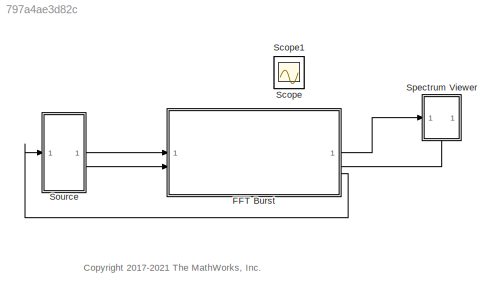
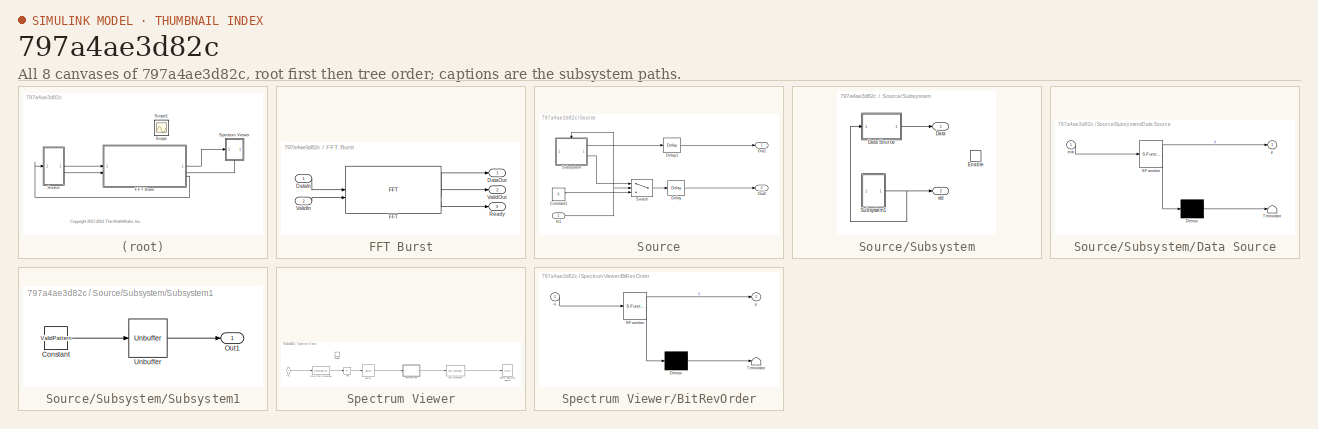
[diagram: thumbnail index - all 8 canvases of the model, root first then tree order]
MODEL slx_797a4ae3d82c
KIND model
CONFIG AbsTol = auto
CONFIG EnableMultiTasking = off
CONFIG FixedStep = auto
CONFIG InitFcn = FFTLength = 2^9;\nValidPattern = 1;\nFs = 1*2e6;
CONFIG MaxStep = auto
CONFIG MinStep = auto
CONFIG RelTol = 1e-3
CONFIG SampleTimeConstraint = Unconstrained
CONFIG SolverName = FixedStepDiscrete
CONFIG StartTime = 0.0
CONFIG StopTime = 48*FFTLength
BLOCK [SubSystem] FFT Burst
BLOCK [Inport] FFT Burst/DataIn
BLOCK [Outport] FFT Burst/DataOut
  VectorParamsAs1DForOutWhenUnconnected = off
BLOCK [Reference] FFT Burst/FFT  REF=dsphdlxfrm2/FFT
  SourceBlock = dsphdlxfrm2/FFT
  SourceType = FFT
BLOCK [Outport] FFT Burst/Ready
  Port = 3
  VectorParamsAs1DForOutWhenUnconnected = off
BLOCK [Inport] FFT Burst/ValidIn
  Port = 2
BLOCK [Outport] FFT Burst/ValidOut
  Port = 2
  VectorParamsAs1DForOutWhenUnconnected = off
BLOCK [Scope] Scope
  Floating = off
  IOType = viewer
  NumInputPorts = 1
  ScopeSpecificationString = Simulink.scopes.TimeScopeBlockCfg('CurrentConfiguration', extmgr.ConfigurationSet(extmgr.Configuration('Core','General UI',true),extmgr.Configuration('Core','Source UI',true),extmgr.Configuration('Sources','WiredSimulink',true),extmgr.Configuration('Visuals','Time Domain',true,'SerializedDisplays',{struct('MinYLimReal','-3.68881','MaxYLimReal','3.68881','YLabelReal','','MinYLimMag','0.00000','MaxY...<+1477ch>
BLOCK [Scope] Scope1
  Floating = off
  IOType = viewer
  NumInputPorts = 1
  ScopeSpecificationString = Simulink.scopes.TimeScopeBlockCfg('CurrentConfiguration', extmgr.ConfigurationSet(extmgr.Configuration('Core','General UI',true),extmgr.Configuration('Core','Source UI',true),extmgr.Configuration('Sources','WiredSimulink',true,'DataLoggingVariableName','ScopeData1'),extmgr.Configuration('Visuals','Time Domain',true,'SerializedDisplays',{struct('MinYLimReal','-645.09138','MaxYLimReal','645.09126','...<+1532ch>
BLOCK [SubSystem] Source
BLOCK [Constant] Source/Constant1
  OutDataTypeStr = boolean
  SampleTime = -1
  Value = 0
BLOCK [Delay] Source/Delay
  DelayLength = 1
  InputPortMap = u0
BLOCK [Delay] Source/Delay1
  DelayLength = 1
  InputPortMap = u0
BLOCK [Inport] Source/In1
BLOCK [Outport] Source/Out1
  VectorParamsAs1DForOutWhenUnconnected = off
BLOCK [Outport] Source/Out2
  Port = 2
  VectorParamsAs1DForOutWhenUnconnected = off
BLOCK [SubSystem] Source/Subsystem
BLOCK [Outport] Source/Subsystem/Data
  VectorParamsAs1DForOutWhenUnconnected = off
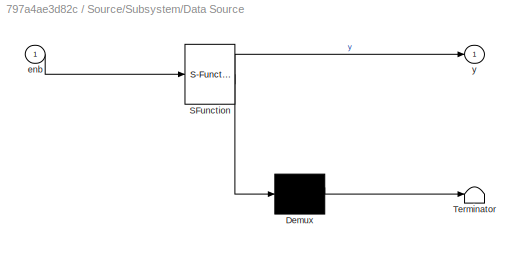
BLOCK [SubSystem] Source/Subsystem/Data Source
  ErrorFcn = Stateflow.Translate.translate
  PermitHierarchicalResolution = ExplicitOnly
  SFBlockType = MATLAB Function
  TreatAsAtomicUnit = on
BLOCK [Demux] Source/Subsystem/Data Source/ Demux 
  Outputs = 1
BLOCK [S-Function] Source/Subsystem/Data Source/ SFunction 
  EnableBusSupport = on
  FunctionName = sf_sfun
  Parameters = Fs
  PortCounts = [1 2]
  SFcnIsStateOwnerBlock = off
  SFunctionDeploymentMode = off
  Tag = Stateflow S-Function 2
BLOCK [Terminator] Source/Subsystem/Data Source/ Terminator 
BLOCK [Inport] Source/Subsystem/Data Source/enb
BLOCK [Outport] Source/Subsystem/Data Source/y
  VectorParamsAs1DForOutWhenUnconnected = off
BLOCK [EnablePort] Source/Subsystem/Enable
BLOCK [SubSystem] Source/Subsystem/Subsystem1
BLOCK [Constant] Source/Subsystem/Subsystem1/Constant
  OutDataTypeStr = boolean
  SampleTime = -1
  Value = ValidPattern
BLOCK [Outport] Source/Subsystem/Subsystem1/Out1
  VectorParamsAs1DForOutWhenUnconnected = off
BLOCK [Unbuffer] Source/Subsystem/Subsystem1/Unbuffer
BLOCK [Outport] Source/Subsystem/vld
  Port = 2
  VectorParamsAs1DForOutWhenUnconnected = off
BLOCK [Switch] Source/Switch
  Criteria = u2 ~= 0
  InputSameDT = off
  SaturateOnIntegerOverflow = off
  Threshold = 1
BLOCK [SubSystem] Spectrum Viewer
  NameLocation = top
BLOCK [Abs] Spectrum Viewer/Abs
  SaturateOnIntegerOverflow = off
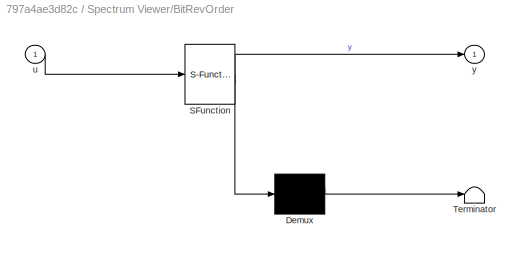
BLOCK [SubSystem] Spectrum Viewer/BitRevOrder
  ErrorFcn = Stateflow.Translate.translate
  PermitHierarchicalResolution = ExplicitOnly
  SFBlockType = MATLAB Function
  TreatAsAtomicUnit = on
BLOCK [Demux] Spectrum Viewer/BitRevOrder/ Demux 
  Outputs = 1
BLOCK [S-Function] Spectrum Viewer/BitRevOrder/ SFunction 
  EnableBusSupport = on
  FunctionName = sf_sfun
  PortCounts = [1 2]
  SFcnIsStateOwnerBlock = off
  SFunctionDeploymentMode = off
  Tag = Stateflow S-Function 3
BLOCK [Terminator] Spectrum Viewer/BitRevOrder/ Terminator 
BLOCK [Inport] Spectrum Viewer/BitRevOrder/u
BLOCK [Outport] Spectrum Viewer/BitRevOrder/y
  VectorParamsAs1DForOutWhenUnconnected = off
BLOCK [Buffer] Spectrum Viewer/Buffer
  N = FFTLength
  OutputFrames = off
BLOCK [DataTypeConversion] Spectrum Viewer/Data Type Conversion
  OutDataTypeStr = double
  RndMeth = Floor
  SaturateOnIntegerOverflow = off
BLOCK [EnablePort] Spectrum Viewer/Enable
BLOCK [Inport] Spectrum Viewer/In1
  NameLocation = top
BLOCK [ArrayPlot] Spectrum Viewer/Power Spectrum viewer
  AxesScaling = Manual
  DefaultConfigurationName = dsp.scopes.ArrayPlotBlockSpecification
  GraphicalSettings = {"Style":{"BackgroundColor":[0.1568627450980392,0.1568627450980392,0.1568627450980392],"AxesColor":[0,0,0],"LabelsColor":[0.6862745098039216,0.6862745098039216,0.6862745098039216],"LineStyle":["-"],"LineColor":[[1,1,0.06666666666666667]],"LineWidth":[1.5],"Marker":["none"],"FontSize":"small"},"Cursors":{"Enabled":false,"XLocation":[2,8],"SnapToData":false,"LockSpacing":false,"ShowText":false},"Pea...<+325ch>
  PlotType = Stairs
  SampleIncrement = Fs/FFTLength
  ScopeFrameLocation = window
  Title = Power Spectrum
  WasSavedAsWebScope = on
  WindowPosition = [413.000000,211.000000,751.000000,427.000000,]
  XLabel = Frequency
  YLabel = dBm
  YLimits = [-60,60]
BLOCK [Reference] Spectrum Viewer/dB Conversion  REF=dspmathops/dB Conversion
  SourceBlock = dspmathops/dB Conversion
  SourceType = dB Conversion
ANNOTATION (root): <copyright redacted>
LINE FFT Burst/DataIn:1 -> FFT Burst/FFT:1
LINE FFT Burst/FFT:1 -> FFT Burst/DataOut:1
LINE FFT Burst/FFT:2 -> FFT Burst/ValidOut:1
LINE FFT Burst/FFT:3 -> FFT Burst/Ready:1
LINE FFT Burst/ValidIn:1 -> FFT Burst/FFT:2
LINE FFT Burst:1 -> Spectrum Viewer:1
LINE FFT Burst:2 -> Spectrum Viewer:enable
LINE FFT Burst:3 -> Source:1
LINE Source/Constant1:1 -> Source/Switch:3
LINE Source/Delay1:1 -> Source/Out1:1
LINE Source/Delay:1 -> Source/Out2:1
NET Source/In1:1 -> Source/Subsystem:enable, Source/Switch:2
LINE Source/Subsystem/Data Source:1 -> Source/Subsystem/Data:1
LINE Source/Subsystem/Subsystem1/Constant:1 -> Source/Subsystem/Subsystem1/Unbuffer:1
LINE Source/Subsystem/Subsystem1/Unbuffer:1 -> Source/Subsystem/Subsystem1/Out1:1
NET Source/Subsystem/Subsystem1:1 -> Source/Subsystem/Data Source:1, Source/Subsystem/vld:1
LINE Source/Subsystem:1 -> Source/Delay1:1
LINE Source/Subsystem:2 -> Source/Switch:1
LINE Source/Switch:1 -> Source/Delay:1
LINE Source:1 -> FFT Burst:1
LINE Source:2 -> FFT Burst:2
LINE Spectrum Viewer/Abs:1 -> Spectrum Viewer/Buffer:1
LINE Spectrum Viewer/BitRevOrder:1 -> Spectrum Viewer/dB Conversion:1
LINE Spectrum Viewer/Buffer:1 -> Spectrum Viewer/BitRevOrder:1
LINE Spectrum Viewer/Data Type Conversion:1 -> Spectrum Viewer/Abs:1
LINE Spectrum Viewer/In1:1 -> Spectrum Viewer/Data Type Conversion:1
LINE Spectrum Viewer/dB Conversion:1 -> Spectrum Viewer/Power Spectrum viewer:1
note: NET lines group one-source signal fan-out (src -> all destinations, sorted); 1:1 wires keep LINE
CHART Source/Subsystem/Data Source states=1 transitions=1
  STATE_LABEL 'eML_blk_kernel()'
  STATE_LABEL "SCRIPT:\nfunction y = fcn(enb, Fs)\npersistent sinegen1 sinegen2\n\nnoiseVar   = 1e-12;\nif isempty(sinegen1)\n    sinegen1 = dsp.SineWave('Amplitude', 1, 'Frequency',200000, 'SampleRate',Fs);\n    sinegen2 = dsp.SineWave('Amplitude', 2, 'Frequency',250000, 'SampleRate',Fs);\nend\n\nif enb  \n    y = complex(fi(sinegen1() + sinegen2() + sqrt(noiseVar)*randn(1,1), 1, 16, 13));\nelse\n    y = complex(fi(0, 1, 16...<+14ch>"
CHART Spectrum Viewer/BitRevOrder states=1 transitions=1
  STATE_LABEL 'eML_blk_kernel()'
  STATE_LABEL 'SCRIPT:\nfunction y = fcn(u)\n\n%#codegen\n\ny = bitrevorder(u);'
CHART  states=0 transitions=0
CHART  states=0 transitions=0
